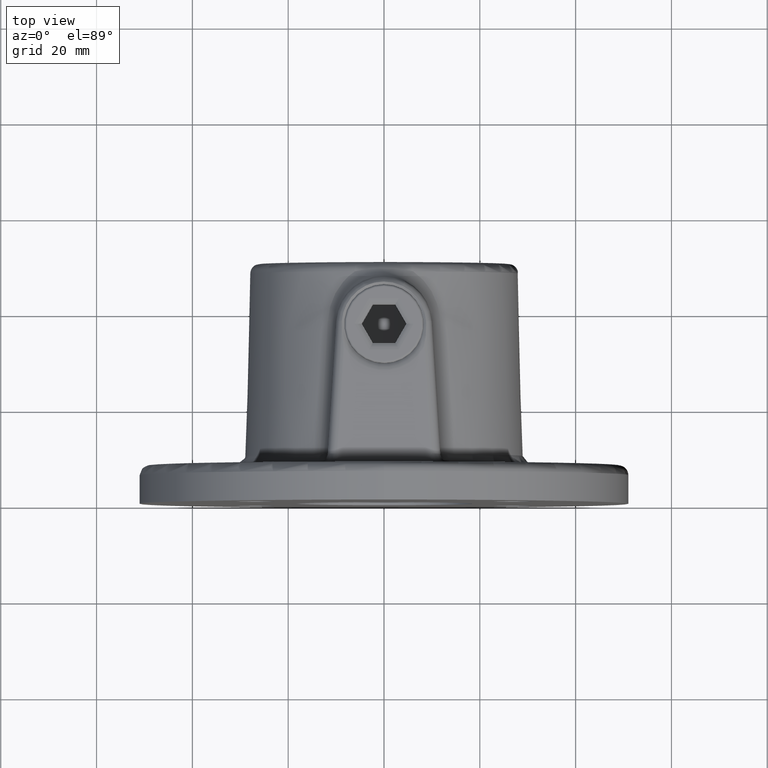
[diagram: clean part render]
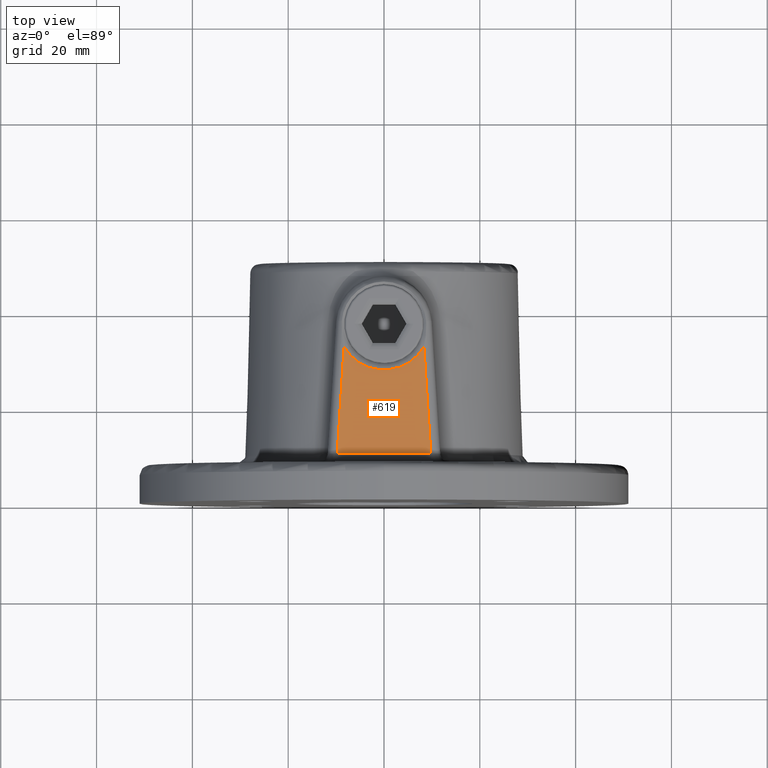
[diagram: same view with one face highlighted and labeled with its STEP entity id]
A machine part, top view. The second image highlights one B-rep face of the part: STEP entity #619.
In plain terms, the highlighted planar face has unit normal (0, 0, 1).
Its self-contained STEP definition (entity closure, byte-faithful):
#2 = ORIENTED_EDGE ( 'NONE', *, *, #1953, .T. ) ;
#24 = DIRECTION ( 'NONE',  ( 1.000000000000000000, -0.000000000000000000, 0.000000000000000000 ) ) ;
#110 = DIRECTION ( 'NONE',  ( 1.000000000000000000, 0.000000000000000000, -0.000000000000000000 ) ) ;
#255 = LINE ( 'NONE', #957, #2146 ) ;
#294 = DIRECTION ( 'NONE',  ( 1.000000000000000000, 0.000000000000000000, 0.000000000000000000 ) ) ;
#308 = CARTESIAN_POINT ( 'NONE',  ( 0.000000000000000000, 37.00000000000000000, 32.50000000000000000 ) ) ;
#380 = VERTEX_POINT ( 'NONE', #2891 ) ;
#485 = ORIENTED_EDGE ( 'NONE', *, *, #1703, .T. ) ;
#533 = CARTESIAN_POINT ( 'NONE',  ( 0.000000000000000000, 37.00000000000000000, 32.50000000000000000 ) ) ;
#542 = VERTEX_POINT ( 'NONE', #1143 ) ;
#619 = ADVANCED_FACE ( 'NONE', ( #1260 ), #1457, .T. ) ;
#778 = DIRECTION ( 'NONE',  ( 0.000000000000000000, 0.000000000000000000, 1.000000000000000000 ) ) ;
#802 = CARTESIAN_POINT ( 'NONE',  ( 7.983586207080551667, 37.51220237613001984, 32.50000000000000000 ) ) ;
#812 = DIRECTION ( 'NONE',  ( -0.06402529701625196690, 0.9979482758850684032, 0.000000000000000000 ) ) ;
#840 = VECTOR ( 'NONE', #812, 1000.000000000000227 ) ;
#879 = CARTESIAN_POINT ( 'NONE',  ( -9.748684630784650196, 10.00000000000000178, 32.50000000000000000 ) ) ;
#927 = CARTESIAN_POINT ( 'NONE',  ( -8.326229983019695524, 32.17148891791024568, 32.50000000000000000 ) ) ;
#957 = CARTESIAN_POINT ( 'NONE',  ( 11.88111037413809257, 10.00000000000000178, 32.50000000000000000 ) ) ;
#1133 = EDGE_CURVE ( 'NONE', #1153, #2165, #1480, .T. ) ;
#1141 = VECTOR ( 'NONE', #1661, 1000.000000000000227 ) ;
#1143 = CARTESIAN_POINT ( 'NONE',  ( 8.326229983019695524, 32.17148891791024568, 32.50000000000000000 ) ) ;
#1153 = VERTEX_POINT ( 'NONE', #927 ) ;
#1226 = CIRCLE ( 'NONE', #1309, 9.624999999999985789 ) ;
#1251 = DIRECTION ( 'NONE',  ( -0.000000000000000000, -0.000000000000000000, -1.000000000000000000 ) ) ;
#1260 = FACE_OUTER_BOUND ( 'NONE', #2885, .T. ) ;
#1305 = LINE ( 'NONE', #802, #840 ) ;
#1309 = AXIS2_PLACEMENT_3D ( 'NONE', #533, #1251, #294 ) ;
#1457 = PLANE ( 'NONE',  #1775 ) ;
#1480 = LINE ( 'NONE', #2769, #1141 ) ;
#1556 = ORIENTED_EDGE ( 'NONE', *, *, #2748, .T. ) ;
#1661 = DIRECTION ( 'NONE',  ( -0.06402529701625196690, -0.9979482758850684032, 0.000000000000000000 ) ) ;
#1703 = EDGE_CURVE ( 'NONE', #542, #1153, #1226, .T. ) ;
#1775 = AXIS2_PLACEMENT_3D ( 'NONE', #308, #778, #110 ) ;
#1953 = EDGE_CURVE ( 'NONE', #380, #542, #1305, .T. ) ;
#2146 = VECTOR ( 'NONE', #24, 1000.000000000000000 ) ;
#2165 = VERTEX_POINT ( 'NONE', #879 ) ;
#2458 = ORIENTED_EDGE ( 'NONE', *, *, #1133, .T. ) ;
#2748 = EDGE_CURVE ( 'NONE', #2165, #380, #255, .T. ) ;
#2769 = CARTESIAN_POINT ( 'NONE',  ( -9.885213822367957093, 7.871949405967488822, 32.50000000000000000 ) ) ;
#2885 = EDGE_LOOP ( 'NONE', ( #1556, #2, #485, #2458 ) ) ;
#2891 = CARTESIAN_POINT ( 'NONE',  ( 9.748684630784650196, 10.00000000000000178, 32.50000000000000000 ) ) ;